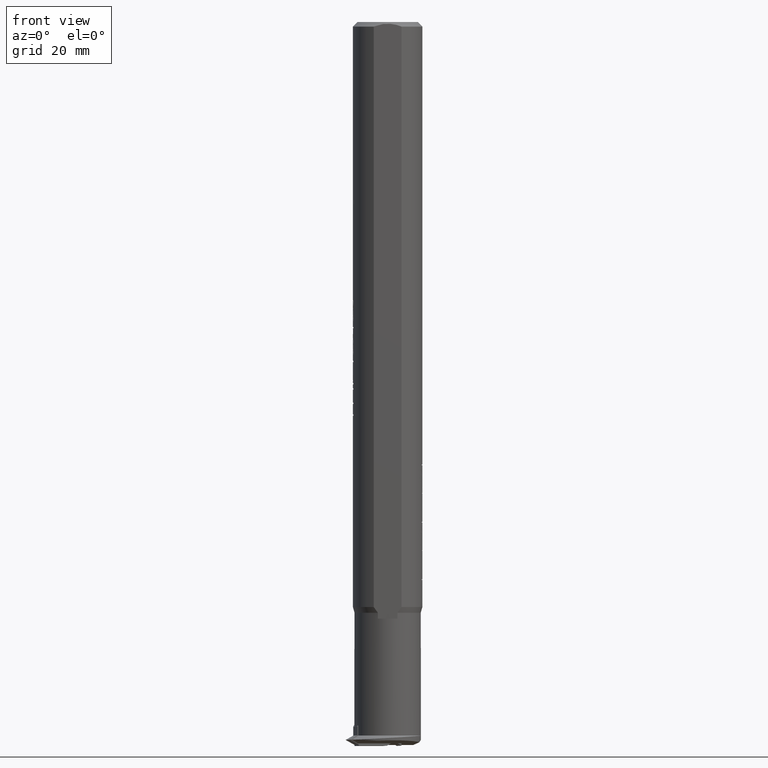
[diagram: clean part render]
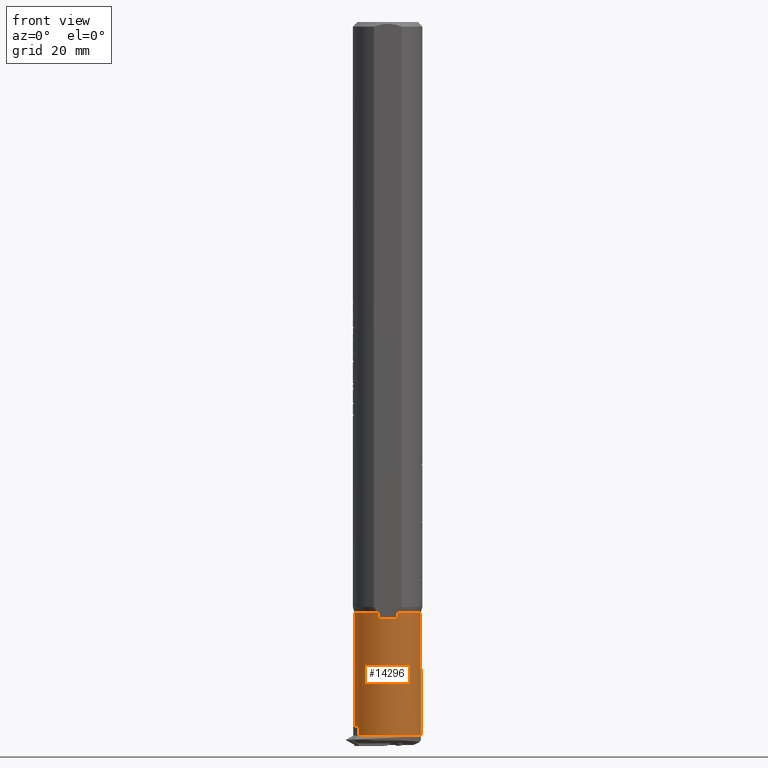
[diagram: same view with one face highlighted and labeled with its STEP entity id]
A machine part, front view. The second image highlights one B-rep face of the part: STEP entity #14296.
In plain terms, the highlighted cylindrical surface (edge-blend (fillet) strip) has radius 5.75 mm, axis along (-0, -0, 1).
Its self-contained STEP definition (entity closure, byte-faithful):
#7 = DIRECTION ( 'NONE',  ( -1.000000000000000000, -0.000000000000000000, -0.000000000000000000 ) ) ;
#86 = CARTESIAN_POINT ( 'NONE',  ( 30.65048290106597761, 23.79634105421641976, 36.79752637946996430 ) ) ;
#92 = CARTESIAN_POINT ( 'NONE',  ( 15.85597794397921412, 15.47579512833312876, 30.10978475732757076 ) ) ;
#237 = CARTESIAN_POINT ( 'NONE',  ( 37.03905779912111740, 20.97579512832781035, 31.78683574045086502 ) ) ;
#313 = DIRECTION ( 'NONE',  ( -1.000000000000000000, -0.000000000000000000, -0.000000000000000000 ) ) ;
#328 = DIRECTION ( 'NONE',  ( -1.000000000000000000, -0.000000000000000000, -0.000000000000000000 ) ) ;
#337 = VERTEX_POINT ( 'NONE', #10932 ) ;
#443 = VERTEX_POINT ( 'NONE', #9964 ) ;
#468 = LINE ( 'NONE', #7609, #14594 ) ;
#570 = DIRECTION ( 'NONE',  ( 1.000000000000000000, 0.000000000000000000, 0.000000000000000000 ) ) ;
#607 = CARTESIAN_POINT ( 'NONE',  ( -87.24402205604130245, 15.47579512832777660, 33.46388672357572602 ) ) ;
#1039 = CIRCLE ( 'NONE', #6176, 5.749999999988888888 ) ;
#1073 = EDGE_CURVE ( 'NONE', #3494, #4912, #10919, .T. ) ;
#1144 = EDGE_CURVE ( 'NONE', #12820, #10976, #4020, .T. ) ;
#1173 = CARTESIAN_POINT ( 'NONE',  ( -87.24402205604130245, 15.47579512832781568, 30.10978475732587611 ) ) ;
#1186 = ORIENTED_EDGE ( 'NONE', *, *, #2404, .T. ) ;
#1264 = VECTOR ( 'NONE', #570, 1000.000000000000000 ) ;
#1301 = CARTESIAN_POINT ( 'NONE',  ( 27.36975923633855245, 24.16666967380409048, 36.57161650842338929 ) ) ;
#1326 = CARTESIAN_POINT ( 'NONE',  ( 28.68063583724575594, 21.92105195399718554, 37.53683574045090410 ) ) ;
#1363 = DIRECTION ( 'NONE',  ( 0.000000000000000000, 0.000000000000000000, 1.000000000000000000 ) ) ;
#1365 = CARTESIAN_POINT ( 'NONE',  ( 28.68063583724575238, 20.97578391888144722, 37.53638027543076561 ) ) ;
#1367 = CARTESIAN_POINT ( 'NONE',  ( 15.85597794399973282, 20.97579512832781035, 31.78683574045086502 ) ) ;
#1439 = EDGE_CURVE ( 'NONE', #10152, #2313, #6503, .T. ) ;
#1454 = VERTEX_POINT ( 'NONE', #92 ) ;
#1611 = CARTESIAN_POINT ( 'NONE',  ( 38.85597794395869897, 26.47579512832781035, 33.46388672357584682 ) ) ;
#1730 = ORIENTED_EDGE ( 'NONE', *, *, #15598, .F. ) ;
#1956 = AXIS2_PLACEMENT_3D ( 'NONE', #12408, #13840, #8939 ) ;
#1974 = EDGE_CURVE ( 'NONE', #443, #337, #5346, .T. ) ;
#1990 =( BOUNDED_CURVE ( )  B_SPLINE_CURVE ( 3, ( #5050, #8868, #6332, #12646 ),
 .UNSPECIFIED., .F., .T. ) 
 B_SPLINE_CURVE_WITH_KNOTS ( ( 4, 4 ),
 ( 0.03416353369844682408, 0.6566388458116186877 ),
 .UNSPECIFIED. ) 
 CURVE ( )  GEOMETRIC_REPRESENTATION_ITEM ( )  RATIONAL_B_SPLINE_CURVE ( ( 1.000000000000000000, 0.9679701886163144531, 0.9679701886163144531, 1.000000000000000000 ) ) 
 REPRESENTATION_ITEM ( '' )  );
#2029 = CIRCLE ( 'NONE', #11000, 5.750000000000039968 ) ;
#2188 = CARTESIAN_POINT ( 'NONE',  ( 21.32300998174266837, 26.47579512832781035, 33.46388672357584682 ) ) ;
#2239 = EDGE_CURVE ( 'NONE', #12820, #14641, #3994, .T. ) ;
#2313 = VERTEX_POINT ( 'NONE', #14546 ) ;
#2323 = CARTESIAN_POINT ( 'NONE',  ( 34.90434390809330978, 20.83656951940447044, 26.03839408990493709 ) ) ;
#2404 = EDGE_CURVE ( 'NONE', #14641, #14086, #12685, .T. ) ;
#2426 = CARTESIAN_POINT ( 'NONE',  ( 28.98820243736684787, 23.88553984753355763, 36.74875077660897205 ) ) ;
#2743 = EDGE_CURVE ( 'NONE', #8314, #9858, #14928, .T. ) ;
#2852 = EDGE_CURVE ( 'NONE', #2313, #8314, #14883, .T. ) ;
#2973 = EDGE_LOOP ( 'NONE', ( #15302, #1730, #15147, #9306, #7361, #13484, #12918, #14893, #14253, #11636, #1186, #11131, #10321, #4492, #10560, #9743, #5082, #3554 ) ) ;
#3086 = CARTESIAN_POINT ( 'NONE',  ( 24.26300660167760981, 22.54895614423503147, 26.23575801501170446 ) ) ;
#3091 = DIRECTION ( 'NONE',  ( 1.000000000000000000, 0.000000000000000000, 0.000000000000000000 ) ) ;
#3202 = CARTESIAN_POINT ( 'NONE',  ( 21.74280513724399100, 26.28338052778150669, 33.99863076429606679 ) ) ;
#3234 = VECTOR ( 'NONE', #10793, 1000.000000000000000 ) ;
#3236 = CARTESIAN_POINT ( 'NONE',  ( 28.98012081488435854, 21.01550095159234033, 26.03477293183790309 ) ) ;
#3494 = VERTEX_POINT ( 'NONE', #14856 ) ;
#3513 = CARTESIAN_POINT ( 'NONE',  ( 32.77474816457174711, 20.87483883899301418, 26.03759465944243701 ) ) ;
#3542 = CARTESIAN_POINT ( 'NONE',  ( 22.00464727819757371, 26.15593726022718002, 34.30445296700487745 ) ) ;
#3554 = ORIENTED_EDGE ( 'NONE', *, *, #7617, .F. ) ;
#3705 = CARTESIAN_POINT ( 'NONE',  ( -87.24402205604130245, 20.97579512832781035, 31.78683574045086502 ) ) ;
#3844 = AXIS2_PLACEMENT_3D ( 'NONE', #237, #8574, #1363 ) ;
#3860 = CARTESIAN_POINT ( 'NONE',  ( 32.72682020736456820, 23.76373754231285673, 36.81587907958542161 ) ) ;
#3994 = B_SPLINE_CURVE_WITH_KNOTS ( 'NONE', 3,
 ( #13498, #1326, #6380, #8529 ),
 .UNSPECIFIED., .F., .F.,
 ( 4, 4 ),
 ( 0.000000000000000000, 1.000000000000000000 ),
 .UNSPECIFIED. ) ;
#4020 = B_SPLINE_CURVE_WITH_KNOTS ( 'NONE', 3,
 ( #10287, #7721, #12380, #11260 ),
 .UNSPECIFIED., .F., .F.,
 ( 4, 4 ),
 ( 0.000000000000000000, 1.000000000000000000 ),
 .UNSPECIFIED. ) ;
#4127 = CARTESIAN_POINT ( 'NONE',  ( -87.24402205604130245, 23.69800093955293718, 36.85162552101753874 ) ) ;
#4291 = CARTESIAN_POINT ( 'NONE',  ( 22.90012841390628751, 23.45454063071112216, 26.59101434442141354 ) ) ;
#4377 = CARTESIAN_POINT ( 'NONE',  ( 26.15384511499101450, 21.71899032256818884, 26.08298851674475216 ) ) ;
#4492 = ORIENTED_EDGE ( 'NONE', *, *, #2852, .T. ) ;
#4751 = CARTESIAN_POINT ( 'NONE',  ( 25.00849284369826364, 24.82625732062313872, 36.06846001866500018 ) ) ;
#4767 =( BOUNDED_CURVE ( )  B_SPLINE_CURVE ( 3, ( #7126, #3513, #2323, #13298 ),
 .UNSPECIFIED., .F., .F. ) 
 B_SPLINE_CURVE_WITH_KNOTS ( ( 4, 4 ),
 ( 1.319898180149722933, 1.339868805788378525 ),
 .UNSPECIFIED. ) 
 CURVE ( )  GEOMETRIC_REPRESENTATION_ITEM ( )  RATIONAL_B_SPLINE_CURVE ( ( 1.000000000000000000, 0.9999667647854485475, 0.9999667647854485475, 1.000000000000000000 ) ) 
 REPRESENTATION_ITEM ( '' )  );
#4818 = CARTESIAN_POINT ( 'NONE',  ( 28.68063583724575594, 23.69800093955294429, 36.85162552101753874 ) ) ;
#4831 = CARTESIAN_POINT ( 'NONE',  ( 24.27007513893860846, 25.11088283288054157, 35.81047392365447024 ) ) ;
#4912 = VERTEX_POINT ( 'NONE', #14171 ) ;
#4921 = DIRECTION ( 'NONE',  ( 1.000000000000000000, 0.000000000000000000, 0.000000000000000000 ) ) ;
#4963 = CARTESIAN_POINT ( 'NONE',  ( 37.03905779912916785, 20.79831009008059794, 26.03957560530714588 ) ) ;
#5050 = CARTESIAN_POINT ( 'NONE',  ( 20.19913940136578390, 26.47579512832781035, 30.10978475732589033 ) ) ;
#5082 = ORIENTED_EDGE ( 'NONE', *, *, #1974, .T. ) ;
#5346 = LINE ( 'NONE', #607, #5395 ) ;
#5395 = VECTOR ( 'NONE', #3091, 1000.000000000000000 ) ;
#5653 = CARTESIAN_POINT ( 'NONE',  ( 27.75574063389831991, 21.25396272599390812, 26.04301744908174143 ) ) ;
#6176 = AXIS2_PLACEMENT_3D ( 'NONE', #1367, #7, #11316 ) ;
#6332 = CARTESIAN_POINT ( 'NONE',  ( 20.78434946253840465, 25.43012103038893557, 27.95378857347132140 ) ) ;
#6380 = CARTESIAN_POINT ( 'NONE',  ( 28.68063583724575594, 22.86538752900317917, 37.29913571648491200 ) ) ;
#6432 = VECTOR ( 'NONE', #328, 1000.000000000000000 ) ;
#6503 = B_SPLINE_CURVE_WITH_KNOTS ( 'NONE', 3,
 ( #7473, #8585, #2426, #13242, #1301, #10762, #15649, #4751, #4831, #7393, #9615, #14521, #3542, #8427 ),
 .UNSPECIFIED., .F., .F.,
 ( 4, 2, 2, 2, 2, 2, 4 ),
 ( 0.000000000000000000, 0.002477990424421169877, 0.003716985636631753732, 0.004955980848842338020, 0.007433971273263513535, 0.008672966485474095655, 0.009911961697684677775 ),
 .UNSPECIFIED. ) ;
#6817 = CARTESIAN_POINT ( 'NONE',  ( 21.32300998174266837, 26.47579512832781035, 33.46388672357584682 ) ) ;
#6855 = CARTESIAN_POINT ( 'NONE',  ( 27.35131246346124811, 21.35144205883024426, 26.04793373295599324 ) ) ;
#6938 = CARTESIAN_POINT ( 'NONE',  ( 30.65048290106597761, 20.91311423317857177, 26.03717739361114170 ) ) ;
#7126 = CARTESIAN_POINT ( 'NONE',  ( 30.65048290106597761, 20.91311423317857177, 26.03717739361114170 ) ) ;
#7361 = ORIENTED_EDGE ( 'NONE', *, *, #1073, .T. ) ;
#7368 = VERTEX_POINT ( 'NONE', #10924 ) ;
#7393 = CARTESIAN_POINT ( 'NONE',  ( 23.23398497043758582, 25.56448270536419898, 35.26001511370118635 ) ) ;
#7399 = DIRECTION ( 'NONE',  ( 0.000000000000000000, 0.000000000000000000, 1.000000000000000000 ) ) ;
#7473 = CARTESIAN_POINT ( 'NONE',  ( 30.65048290106597761, 23.79634105421641976, 36.79752637946996430 ) ) ;
#7609 = CARTESIAN_POINT ( 'NONE',  ( -87.24402205604130245, 20.93923037886559868, 37.53671948006658710 ) ) ;
#7617 = EDGE_CURVE ( 'NONE', #11077, #337, #10155, .T. ) ;
#7638 = VERTEX_POINT ( 'NONE', #4963 ) ;
#7721 = CARTESIAN_POINT ( 'NONE',  ( 28.68063583724575594, 20.96359272421105757, 37.53622457194001782 ) ) ;
#7774 = EDGE_CURVE ( 'NONE', #11077, #1454, #11912, .T. ) ;
#7781 = LINE ( 'NONE', #15235, #1264 ) ;
#7867 = VERTEX_POINT ( 'NONE', #8289 ) ;
#7963 = DIRECTION ( 'NONE',  ( 1.000000000000000000, 0.000000000000000000, 0.000000000000000000 ) ) ;
#8013 = CARTESIAN_POINT ( 'NONE',  ( 21.59296902938442386, 26.35630844959625563, 33.82362757961418254 ) ) ;
#8119 = CARTESIAN_POINT ( 'NONE',  ( 24.99743276017104421, 22.17531947126996172, 26.15491862962829828 ) ) ;
#8289 = CARTESIAN_POINT ( 'NONE',  ( 20.19913940136578390, 26.47579512832781035, 30.10978475732589033 ) ) ;
#8298 = CARTESIAN_POINT ( 'NONE',  ( 16.85597794395869542, 15.47579512832781212, 30.10978475732588677 ) ) ;
#8314 = VERTEX_POINT ( 'NONE', #2188 ) ;
#8427 = CARTESIAN_POINT ( 'NONE',  ( 21.74280513724399100, 26.28338052778150669, 33.99863076429606679 ) ) ;
#8529 = CARTESIAN_POINT ( 'NONE',  ( 28.68063583724575594, 23.69800093955294429, 36.85162552101753874 ) ) ;
#8574 = DIRECTION ( 'NONE',  ( -1.000000000000000000, -0.000000000000000000, -0.000000000000000000 ) ) ;
#8585 = CARTESIAN_POINT ( 'NONE',  ( 29.81258896358726318, 23.80949801329124682, 36.79012025325123858 ) ) ;
#8590 = CARTESIAN_POINT ( 'NONE',  ( 15.85597794395869542, 20.97579512832781035, 31.78683574045086502 ) ) ;
#8818 = CYLINDRICAL_SURFACE ( 'NONE', #15349, 5.750000000000039968 ) ;
#8868 = CARTESIAN_POINT ( 'NONE',  ( 20.25276775543202845, 26.12208232798241880, 28.94976015373596923 ) ) ;
#8939 = DIRECTION ( 'NONE',  ( 0.000000000000000000, 0.000000000000000000, 1.000000000000000000 ) ) ;
#9306 = ORIENTED_EDGE ( 'NONE', *, *, #10771, .T. ) ;
#9521 = CARTESIAN_POINT ( 'NONE',  ( 37.03905779913853280, 20.93923037886585092, 37.53671948006657999 ) ) ;
#9615 = CARTESIAN_POINT ( 'NONE',  ( 22.90381763157871831, 25.71861116891886212, 35.04980185887705346 ) ) ;
#9743 = ORIENTED_EDGE ( 'NONE', *, *, #14280, .T. ) ;
#9858 = VERTEX_POINT ( 'NONE', #11319 ) ;
#9867 = DIRECTION ( 'NONE',  ( -1.000000000000000000, -0.000000000000000000, -0.000000000000000000 ) ) ;
#9964 = CARTESIAN_POINT ( 'NONE',  ( 15.85597794396112903, 15.47579512832779258, 33.46388672357217331 ) ) ;
#10152 = VERTEX_POINT ( 'NONE', #14263 ) ;
#10155 = CIRCLE ( 'NONE', #1956, 5.750000000000039968 ) ;
#10182 =( BOUNDED_CURVE ( )  B_SPLINE_CURVE ( 3, ( #14840, #13700, #3860, #86 ),
 .UNSPECIFIED., .F., .T. ) 
 B_SPLINE_CURVE_WITH_KNOTS ( ( 4, 4 ),
 ( 4.943767066847758684, 4.963287127029863299 ),
 .UNSPECIFIED. ) 
 CURVE ( )  GEOMETRIC_REPRESENTATION_ITEM ( )  RATIONAL_B_SPLINE_CURVE ( ( 1.000000000000000000, 0.9999682475229320078, 0.9999682475229320078, 1.000000000000000000 ) ) 
 REPRESENTATION_ITEM ( '' )  );
#10230 = CIRCLE ( 'NONE', #3844, 5.750000000000039968 ) ;
#10287 = CARTESIAN_POINT ( 'NONE',  ( 28.68063583724575238, 20.97578391888144722, 37.53638027543076561 ) ) ;
#10321 = ORIENTED_EDGE ( 'NONE', *, *, #1439, .T. ) ;
#10462 = CARTESIAN_POINT ( 'NONE',  ( 22.28901988495257669, 23.94715224926502728, 26.85613841604749297 ) ) ;
#10560 = ORIENTED_EDGE ( 'NONE', *, *, #2743, .T. ) ;
#10762 = CARTESIAN_POINT ( 'NONE',  ( 26.57280344303172015, 24.35601114616028084, 36.43978609859105688 ) ) ;
#10771 = EDGE_CURVE ( 'NONE', #7867, #3494, #1990, .T. ) ;
#10793 = DIRECTION ( 'NONE',  ( -1.000000000000000000, -0.000000000000000000, -0.000000000000000000 ) ) ;
#10919 = B_SPLINE_CURVE_WITH_KNOTS ( 'NONE', 3,
 ( #11743, #11588, #10462, #4291, #14072, #3086, #8119, #4377, #12941, #6855, #5653, #3236, #13022, #6938 ),
 .UNSPECIFIED., .F., .F.,
 ( 4, 2, 2, 2, 2, 2, 4 ),
 ( 0.000000000000000000, 0.001242670834196853927, 0.002485341668393707855, 0.004970683336787407904, 0.006213354170984252724, 0.007456025005181094942, 0.009941366673574781113 ),
 .UNSPECIFIED. ) ;
#10924 = CARTESIAN_POINT ( 'NONE',  ( 15.85597794397921412, 26.47579512832247772, 30.10978475732750681 ) ) ;
#10932 = CARTESIAN_POINT ( 'NONE',  ( 16.85597794395869542, 15.47579512832779258, 33.46388672357578287 ) ) ;
#10976 = VERTEX_POINT ( 'NONE', #12720 ) ;
#11000 = AXIS2_PLACEMENT_3D ( 'NONE', #8590, #4921, #14694 ) ;
#11077 = VERTEX_POINT ( 'NONE', #8298 ) ;
#11131 = ORIENTED_EDGE ( 'NONE', *, *, #15651, .T. ) ;
#11260 = CARTESIAN_POINT ( 'NONE',  ( 28.68063583724575594, 20.93923037886559513, 37.53671948006658710 ) ) ;
#11316 = DIRECTION ( 'NONE',  ( 0.000000000000000000, 0.000000000000000000, 1.000000000000000000 ) ) ;
#11319 = CARTESIAN_POINT ( 'NONE',  ( 15.85597794396109705, 26.47579512832781035, 33.46388672357226568 ) ) ;
#11588 = CARTESIAN_POINT ( 'NONE',  ( 22.00423968734626712, 24.20353102587799654, 27.01675728106388519 ) ) ;
#11636 = ORIENTED_EDGE ( 'NONE', *, *, #2239, .T. ) ;
#11743 = CARTESIAN_POINT ( 'NONE',  ( 21.74280513724399100, 24.46640140508754513, 27.21757236211010778 ) ) ;
#11912 = LINE ( 'NONE', #1173, #3234 ) ;
#12380 = CARTESIAN_POINT ( 'NONE',  ( 28.68063583724575594, 20.95141188079708172, 37.53648946327272995 ) ) ;
#12408 = CARTESIAN_POINT ( 'NONE',  ( 16.85597794395869542, 20.97579512832781035, 31.78683574045086502 ) ) ;
#12646 = CARTESIAN_POINT ( 'NONE',  ( 21.74280513724399100, 24.46640140508754513, 27.21757236211010778 ) ) ;
#12685 = LINE ( 'NONE', #4127, #15112 ) ;
#12720 = CARTESIAN_POINT ( 'NONE',  ( 28.68063583724575594, 20.93923037886559513, 37.53671948006658710 ) ) ;
#12820 = VERTEX_POINT ( 'NONE', #1365 ) ;
#12907 = CARTESIAN_POINT ( 'NONE',  ( 21.45292323683623792, 26.42049893602330357, 33.64523425608082619 ) ) ;
#12918 = ORIENTED_EDGE ( 'NONE', *, *, #14718, .T. ) ;
#12941 = CARTESIAN_POINT ( 'NONE',  ( 26.55022166101745995, 21.58388388058825669, 26.06789047603375664 ) ) ;
#13022 = CARTESIAN_POINT ( 'NONE',  ( 29.81425539104552769, 20.92818153109315560, 26.03701313485630919 ) ) ;
#13242 = CARTESIAN_POINT ( 'NONE',  ( 27.77182175329430436, 24.08562292411290784, 36.62394746851877869 ) ) ;
#13298 = CARTESIAN_POINT ( 'NONE',  ( 37.03905779912916785, 20.79831009008059794, 26.03957560530714588 ) ) ;
#13479 = FACE_OUTER_BOUND ( 'NONE', #2973, .T. ) ;
#13484 = ORIENTED_EDGE ( 'NONE', *, *, #15765, .T. ) ;
#13498 = CARTESIAN_POINT ( 'NONE',  ( 28.68063583724575238, 20.97578391888144722, 37.53638027543076561 ) ) ;
#13534 = VERTEX_POINT ( 'NONE', #9521 ) ;
#13700 = CARTESIAN_POINT ( 'NONE',  ( 34.80825246341277790, 23.73095646321112184, 36.83391269938011447 ) ) ;
#13840 = DIRECTION ( 'NONE',  ( -1.000000000000000000, -0.000000000000000000, -0.000000000000000000 ) ) ;
#14072 = CARTESIAN_POINT ( 'NONE',  ( 23.22723092444865145, 23.21781968440158295, 26.48659746619169653 ) ) ;
#14086 = VERTEX_POINT ( 'NONE', #14374 ) ;
#14171 = CARTESIAN_POINT ( 'NONE',  ( 30.65048290106597761, 20.91311423317857177, 26.03717739361114170 ) ) ;
#14253 = ORIENTED_EDGE ( 'NONE', *, *, #1144, .F. ) ;
#14263 = CARTESIAN_POINT ( 'NONE',  ( 30.65048290106597761, 23.79634105421641976, 36.79752637946996430 ) ) ;
#14280 = EDGE_CURVE ( 'NONE', #9858, #443, #2029, .T. ) ;
#14296 = ADVANCED_FACE ( 'NONE', ( #13479 ), #8818, .T. ) ;
#14327 = EDGE_CURVE ( 'NONE', #7368, #7867, #7781, .T. ) ;
#14374 = CARTESIAN_POINT ( 'NONE',  ( 36.89458139732055741, 23.69800093955259968, 36.85162552101773059 ) ) ;
#14521 = CARTESIAN_POINT ( 'NONE',  ( 22.29022482602348987, 26.01381100027884230, 34.57245020746788811 ) ) ;
#14546 = CARTESIAN_POINT ( 'NONE',  ( 21.74280513724399100, 26.28338052778150669, 33.99863076429606679 ) ) ;
#14594 = VECTOR ( 'NONE', #313, 1000.000000000000000 ) ;
#14641 = VERTEX_POINT ( 'NONE', #4818 ) ;
#14694 = DIRECTION ( 'NONE',  ( 0.000000000000000000, -3.620292471603746187E-15, 1.000000000000000000 ) ) ;
#14718 = EDGE_CURVE ( 'NONE', #7638, #13534, #10230, .T. ) ;
#14828 = EDGE_CURVE ( 'NONE', #13534, #10976, #468, .T. ) ;
#14840 = CARTESIAN_POINT ( 'NONE',  ( 36.89458139732055741, 23.69800093955259968, 36.85162552101773059 ) ) ;
#14856 = CARTESIAN_POINT ( 'NONE',  ( 21.74280513724399100, 24.46640140508754513, 27.21757236211010778 ) ) ;
#14883 =( BOUNDED_CURVE ( )  B_SPLINE_CURVE ( 3, ( #3202, #8013, #12907, #6817 ),
 .UNSPECIFIED., .F., .T. ) 
 B_SPLINE_CURVE_WITH_KNOTS ( ( 4, 4 ),
 ( 5.626546461367968988, 5.725422997882851917 ),
 .UNSPECIFIED. ) 
 CURVE ( )  GEOMETRIC_REPRESENTATION_ITEM ( )  RATIONAL_B_SPLINE_CURVE ( ( 1.000000000000000000, 0.9991854518034918309, 0.9991854518034918309, 1.000000000000000000 ) ) 
 REPRESENTATION_ITEM ( '' )  );
#14893 = ORIENTED_EDGE ( 'NONE', *, *, #14828, .T. ) ;
#14928 = LINE ( 'NONE', #1611, #6432 ) ;
#15112 = VECTOR ( 'NONE', #7963, 1000.000000000000000 ) ;
#15147 = ORIENTED_EDGE ( 'NONE', *, *, #14327, .T. ) ;
#15235 = CARTESIAN_POINT ( 'NONE',  ( 38.85597794395869897, 26.47579512832781035, 30.10978475732587967 ) ) ;
#15302 = ORIENTED_EDGE ( 'NONE', *, *, #7774, .T. ) ;
#15349 = AXIS2_PLACEMENT_3D ( 'NONE', #3705, #9867, #7399 ) ;
#15598 = EDGE_CURVE ( 'NONE', #7368, #1454, #1039, .T. ) ;
#15649 = CARTESIAN_POINT ( 'NONE',  ( 26.17661135007234918, 24.46472833869265529, 36.35999782396986291 ) ) ;
#15651 = EDGE_CURVE ( 'NONE', #14086, #10152, #10182, .T. ) ;
#15765 = EDGE_CURVE ( 'NONE', #4912, #7638, #4767, .T. ) ;